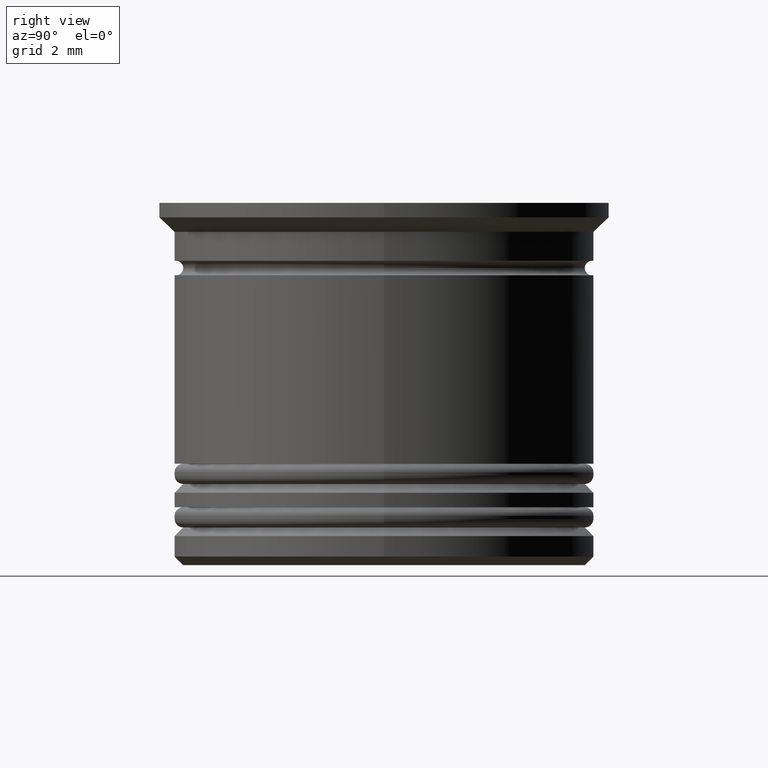
[diagram: clean part render]
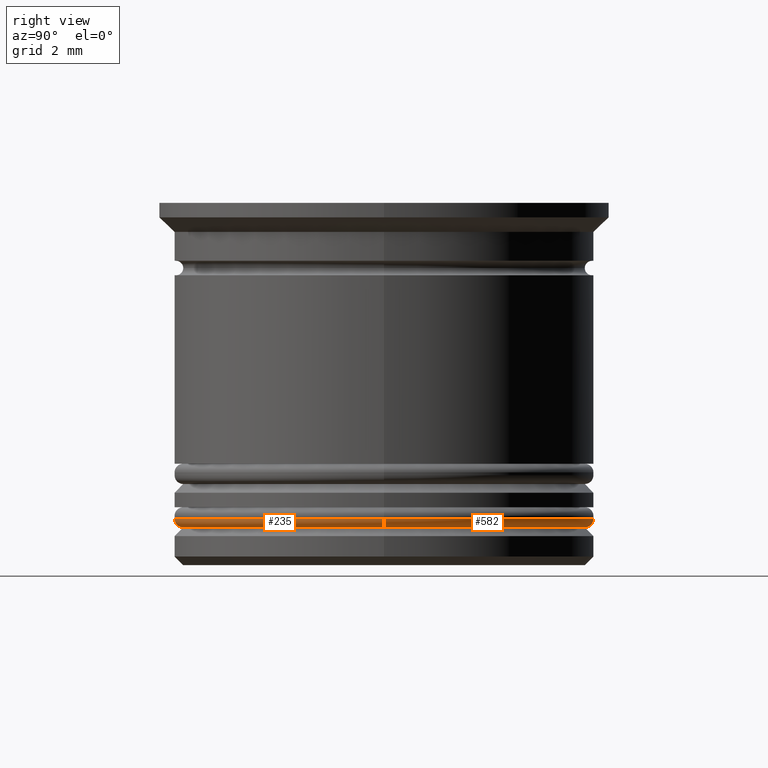
[diagram: same view with one multi-face feature highlighted, each face labeled with its STEP entity id]
A machine part, right view. The highlighted faces form ONE feature: a constant-radius fillet chain: 2 tangent blend faces with common blend radius 0.3 mm. The faces share edges in the B-rep.
Their STEP definitions:
[1] entity #235 (Torus):
#16 = DIRECTION ( 'NONE',  ( -0.000000000000000000, -0.000000000000000000, -1.000000000000000000 ) ) ;
#134 = DIRECTION ( 'NONE',  ( -1.000000000000000000, 1.224646799147350249E-16, 0.000000000000000000 ) ) ;
#165 = EDGE_CURVE ( 'NONE', #1454, #1670, #496, .T. ) ;
#172 = DIRECTION ( 'NONE',  ( 0.000000000000000000, 0.000000000000000000, -1.000000000000000000 ) ) ;
#175 = EDGE_CURVE ( 'NONE', #689, #1454, #1401, .T. ) ;
#235 = ADVANCED_FACE ( 'NONE', ( #1387 ), #438, .T. ) ;
#286 = CARTESIAN_POINT ( 'NONE',  ( 0.000000000000000000, 0.000000000000000000, -10.90000000000000746 ) ) ;
#292 = EDGE_CURVE ( 'NONE', #1733, #1670, #459, .T. ) ;
#427 = ORIENTED_EDGE ( 'NONE', *, *, #471, .F. ) ;
#438 = TOROIDAL_SURFACE ( 'NONE', #663, 6.950000000000000178, 0.2999999999999999889 ) ;
#459 = CIRCLE ( 'NONE', #881, 0.2999999999999999334 ) ;
#471 = EDGE_CURVE ( 'NONE', #1733, #689, #855, .T. ) ;
#496 = CIRCLE ( 'NONE', #1730, 7.250000000000000000 ) ;
#499 = AXIS2_PLACEMENT_3D ( 'NONE', #1360, #1534, #134 ) ;
#537 = DIRECTION ( 'NONE',  ( 1.000000000000000000, 0.000000000000000000, 0.000000000000000000 ) ) ;
#663 = AXIS2_PLACEMENT_3D ( 'NONE', #286, #1542, #889 ) ;
#689 = VERTEX_POINT ( 'NONE', #1289 ) ;
#855 = CIRCLE ( 'NONE', #1980, 6.950000000000000178 ) ;
#856 = CARTESIAN_POINT ( 'NONE',  ( -7.250000000000000000, 8.878689293818310074E-16, -10.90000000000000746 ) ) ;
#881 = AXIS2_PLACEMENT_3D ( 'NONE', #1728, #954, #172 ) ;
#886 = ORIENTED_EDGE ( 'NONE', *, *, #175, .F. ) ;
#889 = DIRECTION ( 'NONE',  ( 1.000000000000000000, 0.000000000000000000, 0.000000000000000000 ) ) ;
#954 = DIRECTION ( 'NONE',  ( 0.000000000000000000, -1.000000000000000000, 0.000000000000000000 ) ) ;
#1089 = CARTESIAN_POINT ( 'NONE',  ( 0.000000000000000000, 0.000000000000000000, -11.20000000000000817 ) ) ;
#1107 = EDGE_LOOP ( 'NONE', ( #886, #427, #1762, #1580 ) ) ;
#1289 = CARTESIAN_POINT ( 'NONE',  ( -6.950000000000000178, 8.694992273946207746E-16, -11.20000000000000817 ) ) ;
#1321 = CARTESIAN_POINT ( 'NONE',  ( 6.950000000000000178, 0.000000000000000000, -11.20000000000000817 ) ) ;
#1345 = DIRECTION ( 'NONE',  ( 0.000000000000000000, 0.000000000000000000, 1.000000000000000000 ) ) ;
#1360 = CARTESIAN_POINT ( 'NONE',  ( -6.950000000000000178, 8.511295254074105418E-16, -10.90000000000000746 ) ) ;
#1387 = FACE_OUTER_BOUND ( 'NONE', #1107, .T. ) ;
#1401 = CIRCLE ( 'NONE', #499, 0.2999999999999999334 ) ;
#1454 = VERTEX_POINT ( 'NONE', #856 ) ;
#1534 = DIRECTION ( 'NONE',  ( 1.224646799147353207E-16, 1.000000000000000000, -0.000000000000000000 ) ) ;
#1542 = DIRECTION ( 'NONE',  ( 0.000000000000000000, 0.000000000000000000, 1.000000000000000000 ) ) ;
#1580 = ORIENTED_EDGE ( 'NONE', *, *, #165, .F. ) ;
#1612 = CARTESIAN_POINT ( 'NONE',  ( 7.250000000000000000, 0.000000000000000000, -10.90000000000000746 ) ) ;
#1670 = VERTEX_POINT ( 'NONE', #1612 ) ;
#1728 = CARTESIAN_POINT ( 'NONE',  ( 6.950000000000000178, 0.000000000000000000, -10.90000000000000746 ) ) ;
#1730 = AXIS2_PLACEMENT_3D ( 'NONE', #1918, #1345, #537 ) ;
#1733 = VERTEX_POINT ( 'NONE', #1321 ) ;
#1762 = ORIENTED_EDGE ( 'NONE', *, *, #292, .T. ) ;
#1858 = DIRECTION ( 'NONE',  ( 1.000000000000000000, 0.000000000000000000, 0.000000000000000000 ) ) ;
#1918 = CARTESIAN_POINT ( 'NONE',  ( 0.000000000000000000, 0.000000000000000000, -10.90000000000000746 ) ) ;
#1980 = AXIS2_PLACEMENT_3D ( 'NONE', #1089, #16, #1858 ) ;
[2] entity #582 (Torus):
#56 = CIRCLE ( 'NONE', #1663, 7.250000000000000000 ) ;
#81 = DIRECTION ( 'NONE',  ( 0.000000000000000000, 0.000000000000000000, 1.000000000000000000 ) ) ;
#134 = DIRECTION ( 'NONE',  ( -1.000000000000000000, 1.224646799147350249E-16, 0.000000000000000000 ) ) ;
#139 = EDGE_CURVE ( 'NONE', #1670, #1454, #56, .T. ) ;
#172 = DIRECTION ( 'NONE',  ( 0.000000000000000000, 0.000000000000000000, -1.000000000000000000 ) ) ;
#175 = EDGE_CURVE ( 'NONE', #689, #1454, #1401, .T. ) ;
#216 = DIRECTION ( 'NONE',  ( 1.000000000000000000, 0.000000000000000000, 0.000000000000000000 ) ) ;
#292 = EDGE_CURVE ( 'NONE', #1733, #1670, #459, .T. ) ;
#340 = AXIS2_PLACEMENT_3D ( 'NONE', #488, #1414, #1757 ) ;
#459 = CIRCLE ( 'NONE', #881, 0.2999999999999999334 ) ;
#488 = CARTESIAN_POINT ( 'NONE',  ( 0.000000000000000000, 0.000000000000000000, -11.20000000000000817 ) ) ;
#499 = AXIS2_PLACEMENT_3D ( 'NONE', #1360, #1534, #134 ) ;
#582 = ADVANCED_FACE ( 'NONE', ( #687 ), #1447, .T. ) ;
#687 = FACE_OUTER_BOUND ( 'NONE', #1907, .T. ) ;
#689 = VERTEX_POINT ( 'NONE', #1289 ) ;
#691 = DIRECTION ( 'NONE',  ( 1.000000000000000000, 0.000000000000000000, 0.000000000000000000 ) ) ;
#778 = CIRCLE ( 'NONE', #340, 6.950000000000000178 ) ;
#805 = ORIENTED_EDGE ( 'NONE', *, *, #139, .F. ) ;
#856 = CARTESIAN_POINT ( 'NONE',  ( -7.250000000000000000, 8.878689293818310074E-16, -10.90000000000000746 ) ) ;
#871 = CARTESIAN_POINT ( 'NONE',  ( 0.000000000000000000, 0.000000000000000000, -10.90000000000000746 ) ) ;
#881 = AXIS2_PLACEMENT_3D ( 'NONE', #1728, #954, #172 ) ;
#954 = DIRECTION ( 'NONE',  ( 0.000000000000000000, -1.000000000000000000, 0.000000000000000000 ) ) ;
#1050 = ORIENTED_EDGE ( 'NONE', *, *, #175, .T. ) ;
#1289 = CARTESIAN_POINT ( 'NONE',  ( -6.950000000000000178, 8.694992273946207746E-16, -11.20000000000000817 ) ) ;
#1306 = EDGE_CURVE ( 'NONE', #689, #1733, #778, .T. ) ;
#1321 = CARTESIAN_POINT ( 'NONE',  ( 6.950000000000000178, 0.000000000000000000, -11.20000000000000817 ) ) ;
#1360 = CARTESIAN_POINT ( 'NONE',  ( -6.950000000000000178, 8.511295254074105418E-16, -10.90000000000000746 ) ) ;
#1401 = CIRCLE ( 'NONE', #499, 0.2999999999999999334 ) ;
#1414 = DIRECTION ( 'NONE',  ( -0.000000000000000000, -0.000000000000000000, -1.000000000000000000 ) ) ;
#1447 = TOROIDAL_SURFACE ( 'NONE', #1695, 6.950000000000000178, 0.2999999999999999889 ) ;
#1454 = VERTEX_POINT ( 'NONE', #856 ) ;
#1456 = ORIENTED_EDGE ( 'NONE', *, *, #292, .F. ) ;
#1534 = DIRECTION ( 'NONE',  ( 1.224646799147353207E-16, 1.000000000000000000, -0.000000000000000000 ) ) ;
#1612 = CARTESIAN_POINT ( 'NONE',  ( 7.250000000000000000, 0.000000000000000000, -10.90000000000000746 ) ) ;
#1613 = ORIENTED_EDGE ( 'NONE', *, *, #1306, .F. ) ;
#1663 = AXIS2_PLACEMENT_3D ( 'NONE', #871, #81, #691 ) ;
#1670 = VERTEX_POINT ( 'NONE', #1612 ) ;
#1695 = AXIS2_PLACEMENT_3D ( 'NONE', #1912, #1934, #216 ) ;
#1728 = CARTESIAN_POINT ( 'NONE',  ( 6.950000000000000178, 0.000000000000000000, -10.90000000000000746 ) ) ;
#1733 = VERTEX_POINT ( 'NONE', #1321 ) ;
#1757 = DIRECTION ( 'NONE',  ( 1.000000000000000000, 0.000000000000000000, 0.000000000000000000 ) ) ;
#1907 = EDGE_LOOP ( 'NONE', ( #1613, #1050, #805, #1456 ) ) ;
#1912 = CARTESIAN_POINT ( 'NONE',  ( 0.000000000000000000, 0.000000000000000000, -10.90000000000000746 ) ) ;
#1934 = DIRECTION ( 'NONE',  ( 0.000000000000000000, 0.000000000000000000, 1.000000000000000000 ) ) ;